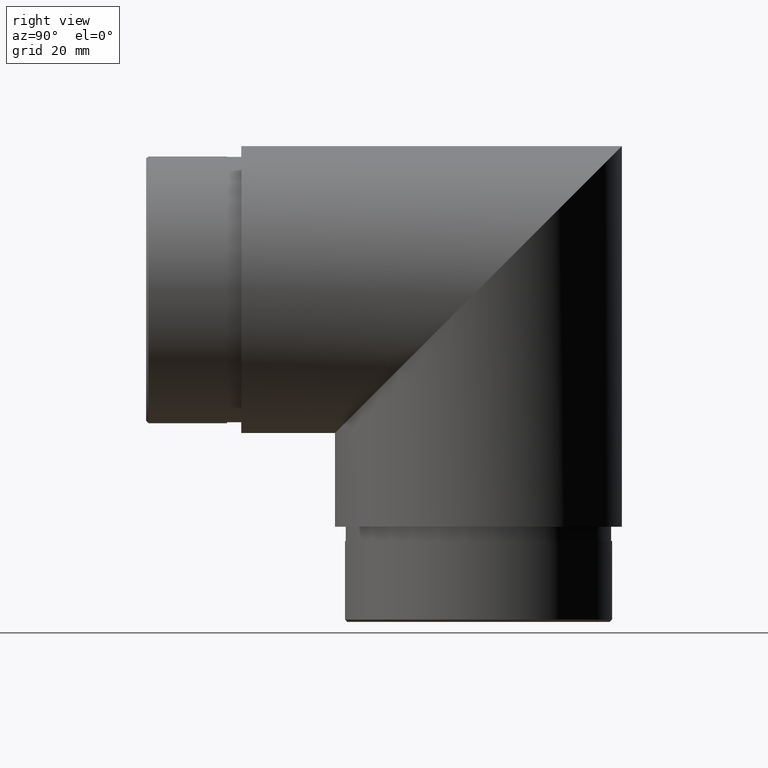
[diagram: clean part render]
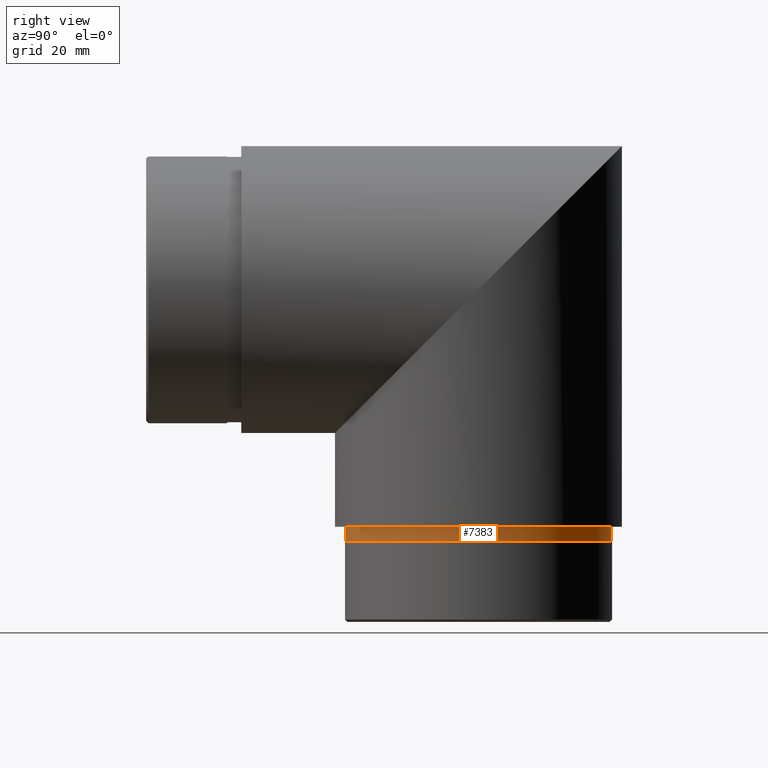
[diagram: same view with one face highlighted and labeled with its STEP entity id]
A machine part, right view. The second image highlights one B-rep face of the part: STEP entity #7383.
In plain terms, the highlighted cylindrical surface (bore or boss wall) has radius 27.9 mm, axis along (-0, 0, 1).
Its self-contained STEP definition (entity closure, byte-faithful):
#1391 = CARTESIAN_POINT ( 'NONE',  ( 0.0000000000000000000, 49.84999999999983100, -49.85000000000000100 ) ) ;
#1738 = CARTESIAN_POINT ( 'NONE',  ( 0.0000000000000000000, 77.74999999999981500, -52.85000000000010100 ) ) ;
#2204 = DIRECTION ( 'NONE',  ( 0.0000000000000000000, 1.000000000000000000, -3.481882245688214600E-015 ) ) ;
#2434 = DIRECTION ( 'NONE',  ( 0.0000000000000000000, 1.000000000000000000, -3.481882245688215700E-015 ) ) ;
#2898 = DIRECTION ( 'NONE',  ( -0.0000000000000000000, 3.441691376337984500E-015, 1.000000000000000000 ) ) ;
#2949 = EDGE_LOOP ( 'NONE', ( #7405 ) ) ;
#3881 = EDGE_CURVE ( 'NONE', #7579, #7579, #7779, .T. ) ;
#4832 = AXIS2_PLACEMENT_3D ( 'NONE', #8169, #2898, #9073 ) ;
#5835 = FACE_OUTER_BOUND ( 'NONE', #2949, .T. ) ;
#6313 = AXIS2_PLACEMENT_3D ( 'NONE', #1391, #7559, #2204 ) ;
#7383 = ADVANCED_FACE ( 'NONE', ( #5835, #11121 ), #8417, .T. ) ;
#7405 = ORIENTED_EDGE ( 'NONE', *, *, #9071, .F. ) ;
#7559 = DIRECTION ( 'NONE',  ( 0.0000000000000000000, -3.441691376337984500E-015, -1.000000000000000000 ) ) ;
#7579 = VERTEX_POINT ( 'NONE', #9801 ) ;
#7779 = CIRCLE ( 'NONE', #6313, 27.90000000000000200 ) ;
#8120 = ORIENTED_EDGE ( 'NONE', *, *, #3881, .T. ) ;
#8169 = CARTESIAN_POINT ( 'NONE',  ( 0.0000000000000000000, 49.84999999999982400, -52.85000000000000100 ) ) ;
#8417 = CYLINDRICAL_SURFACE ( 'NONE', #4832, 27.89999999999999900 ) ;
#8552 = EDGE_LOOP ( 'NONE', ( #8120 ) ) ;
#8659 = VERTEX_POINT ( 'NONE', #1738 ) ;
#8812 = CIRCLE ( 'NONE', #10127, 27.89999999999999500 ) ;
#9071 = EDGE_CURVE ( 'NONE', #8659, #8659, #8812, .T. ) ;
#9073 = DIRECTION ( 'NONE',  ( 0.0000000000000000000, -1.000000000000000000, 3.481882245688215000E-015 ) ) ;
#9801 = CARTESIAN_POINT ( 'NONE',  ( 0.0000000000000000000, 77.74999999999982900, -49.85000000000009400 ) ) ;
#10127 = AXIS2_PLACEMENT_3D ( 'NONE', #11276, #11381, #2434 ) ;
#11121 = FACE_OUTER_BOUND ( 'NONE', #8552, .T. ) ;
#11276 = CARTESIAN_POINT ( 'NONE',  ( 0.0000000000000000000, 49.84999999999982400, -52.85000000000000100 ) ) ;
#11381 = DIRECTION ( 'NONE',  ( 0.0000000000000000000, -3.441691376337984500E-015, -1.000000000000000000 ) ) ;